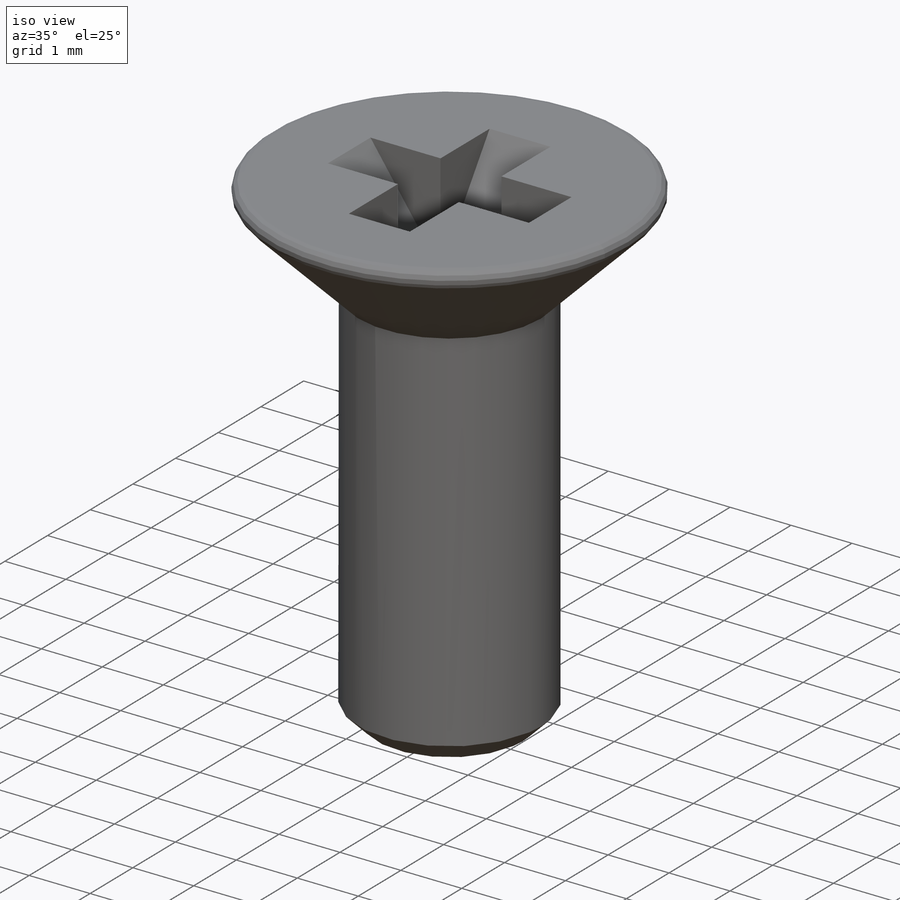
[diagram: iso view]
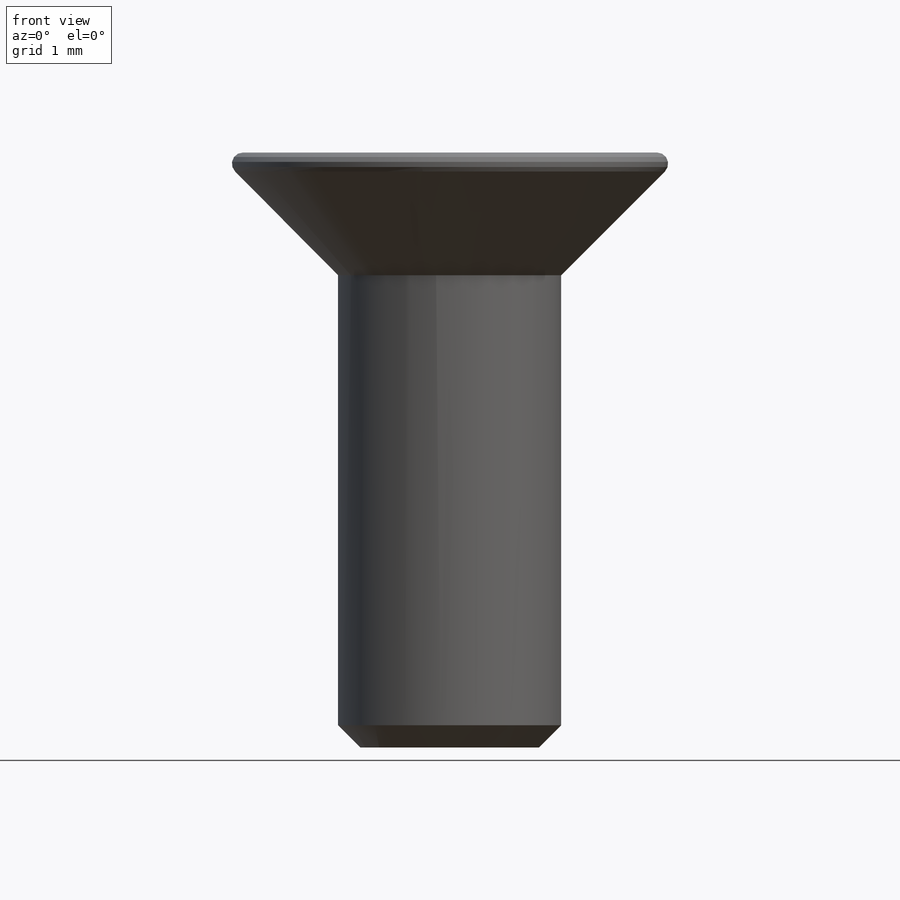
[diagram: front view]
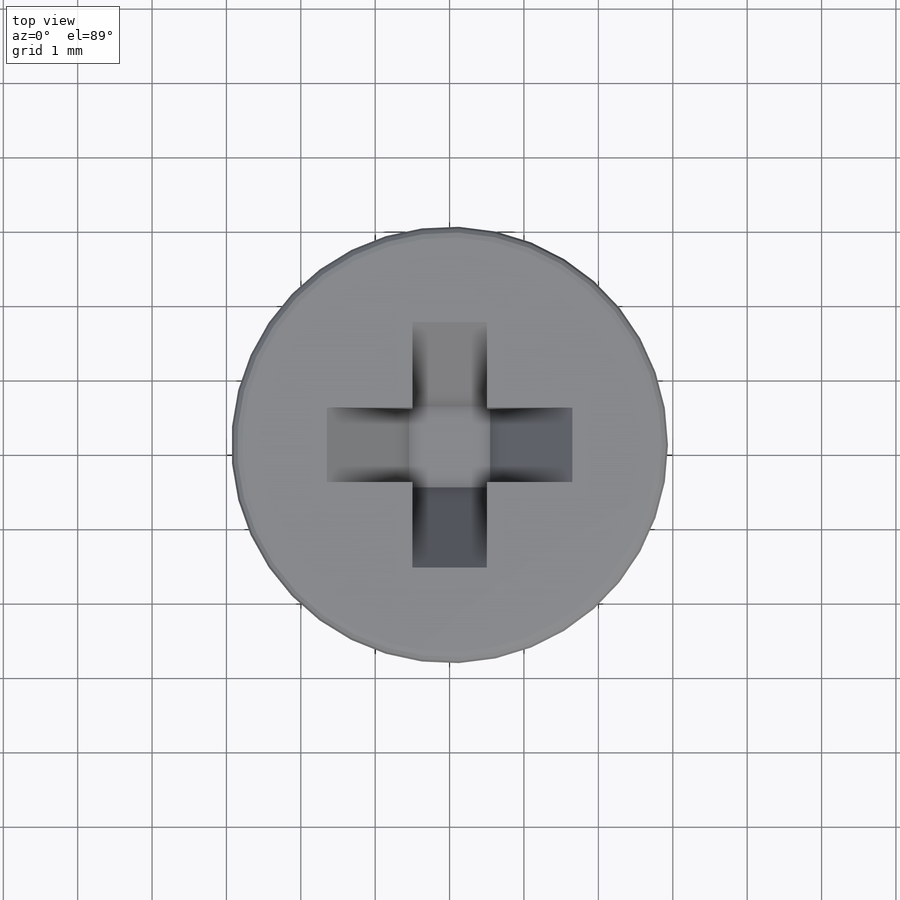
[diagram: top view]
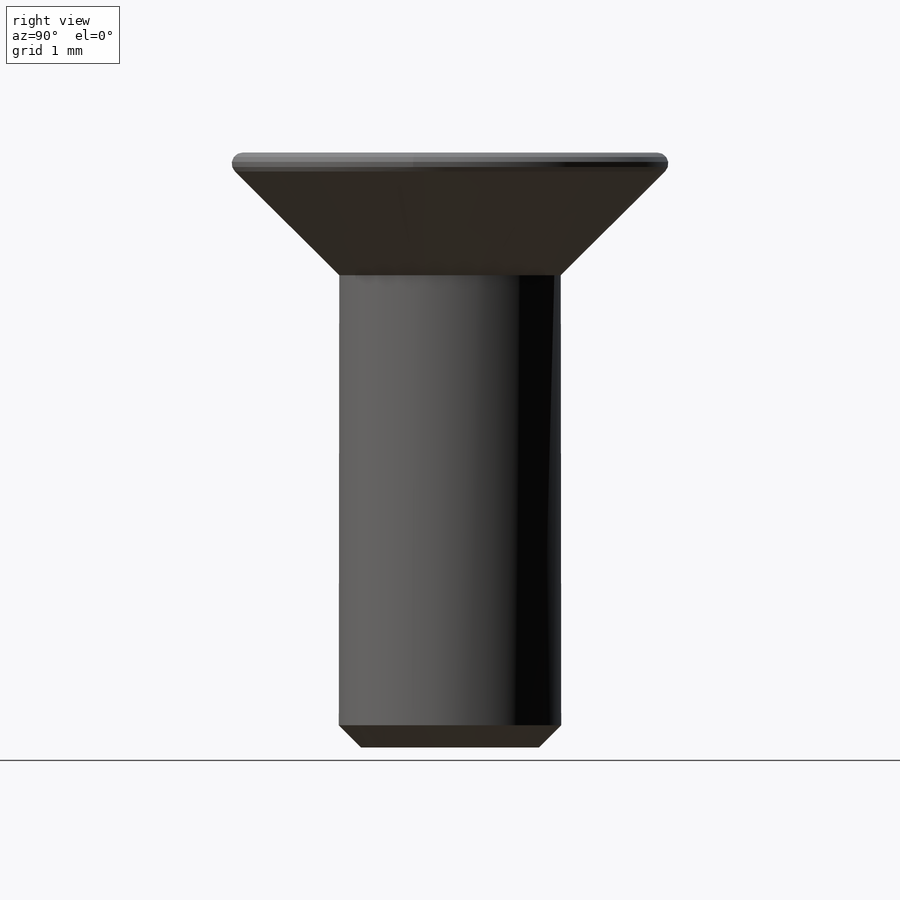
[diagram: right view]
SOLIDWORKS PART (.sldprt)
format: sldprt  version: not decoded by parser v0  size: 762,368 bytes
history: native  units: mm
features: plane x3, sketch x2, material x1, revolve x1, cut_extrude x1, pattern_circular x1 + 1 further entry (+9 scaffold rows collapsed)
feature tree (19):
  scaffold x9  (default folders/planes/origin — collapsed)
  material  "Matériau <non spécifié>"
  plane  "Plan de face"
  plane  "Plan de dessus"
  plane  "Plan de droite"
  "Famille de pièces"
  sketch  "Esquisse1"  dims[c1.D2=0.2mm c1.D3=0.2mm c2.D2=0.15mm c2.D1=~34.324235mm c3.D2=~40.075235mm c3.D3=10.0mm c3.D1=~4.26553mm c4.D3=8.4mm c4.D1=~8.004902mm c5.D1=45.0deg c5.D3=10.0mm c5.D2=16.8mm c6.D3=0.3mm c6.D4=0.3mm]
  revolve  "Révolution1"  Angle=360deg
  sketch  "Esquisse4"  dims[c1.D1=3.3mm c1.D2=~1.578947mm c1.D3=2.2mm c2.D3=55.0deg]
  cut_extrude  "Enlèv. mat.-Extru.2"  Depth=1mm
  pattern_circular  "Répétition circulaire2"  Count=2 Angle=90deg
decode coverage: 5 of 5 modeling features carry decoded parameters; 1 rows unclassified (native names shown)
note: ~ marks probable driven/reference dimensions
note: suppression state not decoded; provenance and decode notes live in map.json
